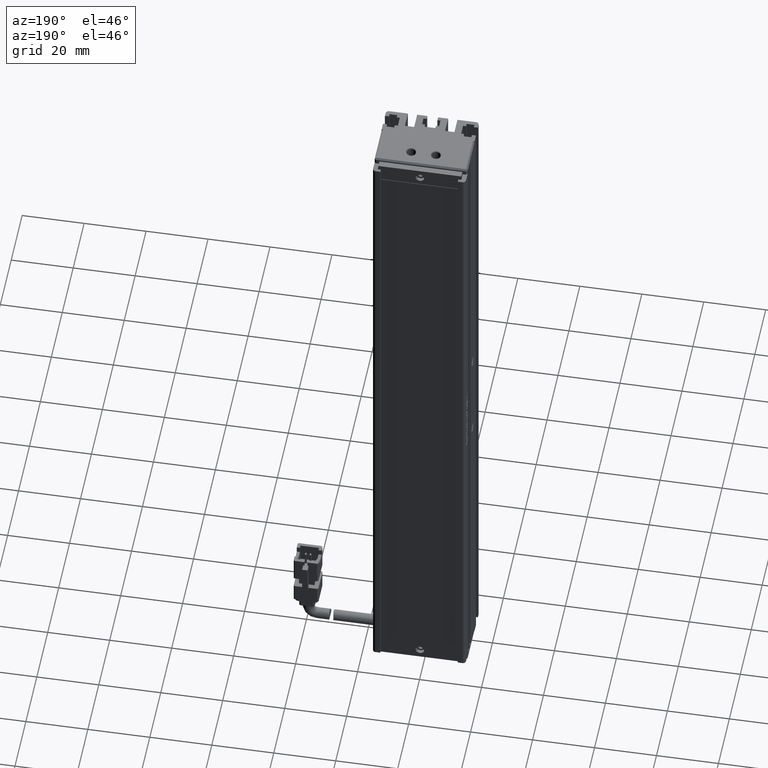
[diagram: clean part render]
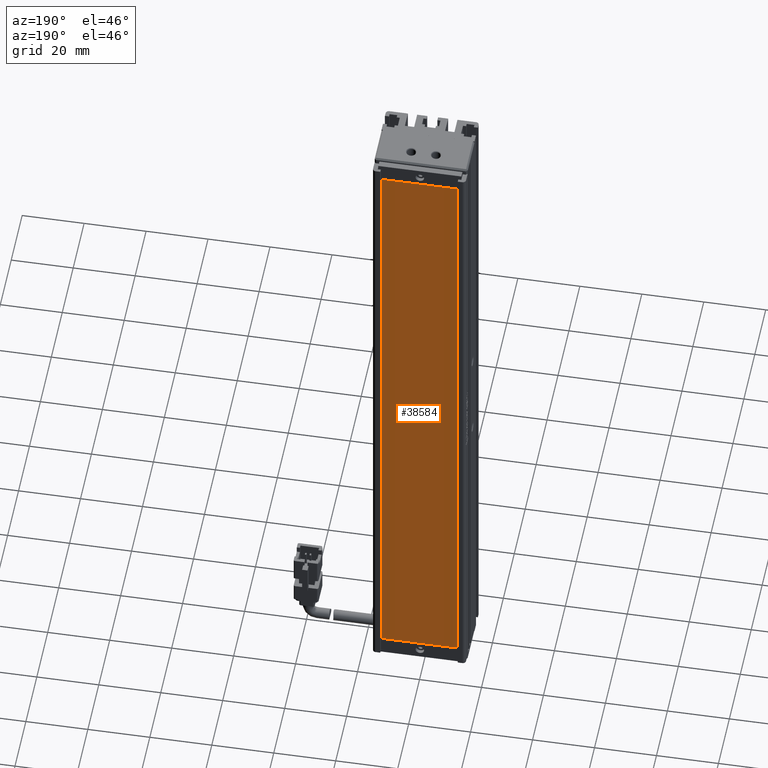
[diagram: same view with one face highlighted and labeled with its STEP entity id]
A machine part, auxiliary view. The second image highlights one B-rep face of the part: STEP entity #38584.
In plain terms, the highlighted planar face has unit normal (0, 1, 0).
Its self-contained STEP definition (entity closure, byte-faithful):
#1183 = VERTEX_POINT ( 'NONE', #8486 ) ;
#2341 = DIRECTION ( 'NONE',  ( -1.000000000000000000, 0.0000000000000000000, 0.0000000000000000000 ) ) ;
#3076 = CARTESIAN_POINT ( 'NONE',  ( 28.52537974683541600, 34.29594479660387000, -219.8499999999999900 ) ) ;
#3097 = ORIENTED_EDGE ( 'NONE', *, *, #25217, .T. ) ;
#3300 = CARTESIAN_POINT ( 'NONE',  ( 53.32537974683541600, 34.29594479660387000, -219.8499999999999900 ) ) ;
#4976 = CARTESIAN_POINT ( 'NONE',  ( 28.52537974683541600, 34.29594479660387000, -9.849999999999997900 ) ) ;
#7359 = LINE ( 'NONE', #9333, #27701 ) ;
#8033 = EDGE_LOOP ( 'NONE', ( #17363, #3097, #16272, #22545 ) ) ;
#8486 = CARTESIAN_POINT ( 'NONE',  ( 28.52537974683541600, 34.29594479660387000, -9.849999999999997900 ) ) ;
#9333 = CARTESIAN_POINT ( 'NONE',  ( 53.32537974683541600, 34.29594479660387000, -9.849999999999997900 ) ) ;
#12666 = DIRECTION ( 'NONE',  ( 1.000000000000000000, 0.0000000000000000000, 0.0000000000000000000 ) ) ;
#14331 = FACE_OUTER_BOUND ( 'NONE', #8033, .T. ) ;
#14881 = EDGE_CURVE ( 'NONE', #1183, #39811, #49313, .T. ) ;
#16272 = ORIENTED_EDGE ( 'NONE', *, *, #37763, .T. ) ;
#17012 = DIRECTION ( 'NONE',  ( 0.0000000000000000000, 0.0000000000000000000, -1.000000000000000000 ) ) ;
#17363 = ORIENTED_EDGE ( 'NONE', *, *, #26626, .T. ) ;
#17560 = CARTESIAN_POINT ( 'NONE',  ( 53.32537974683541600, 34.29594479660387000, -219.8499999999999900 ) ) ;
#19276 = CARTESIAN_POINT ( 'NONE',  ( 0.0000000000000000000, 34.29594479660387000, 0.0000000000000000000 ) ) ;
#21720 = VECTOR ( 'NONE', #39943, 1000.000000000000000 ) ;
#22545 = ORIENTED_EDGE ( 'NONE', *, *, #14881, .T. ) ;
#23087 = DIRECTION ( 'NONE',  ( 0.0000000000000000000, -0.0000000000000000000, 1.000000000000000000 ) ) ;
#25217 = EDGE_CURVE ( 'NONE', #31141, #47880, #41643, .T. ) ;
#26626 = EDGE_CURVE ( 'NONE', #39811, #31141, #7359, .T. ) ;
#27701 = VECTOR ( 'NONE', #17012, 1000.000000000000000 ) ;
#28744 = AXIS2_PLACEMENT_3D ( 'NONE', #19276, #45838, #23087 ) ;
#30616 = PLANE ( 'NONE',  #28744 ) ;
#31141 = VERTEX_POINT ( 'NONE', #3300 ) ;
#36159 = CARTESIAN_POINT ( 'NONE',  ( 28.52537974683541600, 34.29594479660387000, -219.8499999999999900 ) ) ;
#37763 = EDGE_CURVE ( 'NONE', #47880, #1183, #41885, .T. ) ;
#38584 = ADVANCED_FACE ( 'NONE', ( #14331 ), #30616, .T. ) ;
#39213 = VECTOR ( 'NONE', #12666, 1000.000000000000000 ) ;
#39291 = VECTOR ( 'NONE', #2341, 1000.000000000000000 ) ;
#39811 = VERTEX_POINT ( 'NONE', #46719 ) ;
#39943 = DIRECTION ( 'NONE',  ( 0.0000000000000000000, 0.0000000000000000000, 1.000000000000000000 ) ) ;
#41643 = LINE ( 'NONE', #17560, #39291 ) ;
#41885 = LINE ( 'NONE', #36159, #21720 ) ;
#45838 = DIRECTION ( 'NONE',  ( 0.0000000000000000000, 1.000000000000000000, 0.0000000000000000000 ) ) ;
#46719 = CARTESIAN_POINT ( 'NONE',  ( 53.32537974683541600, 34.29594479660387000, -9.849999999999997900 ) ) ;
#47880 = VERTEX_POINT ( 'NONE', #3076 ) ;
#49313 = LINE ( 'NONE', #4976, #39213 ) ;